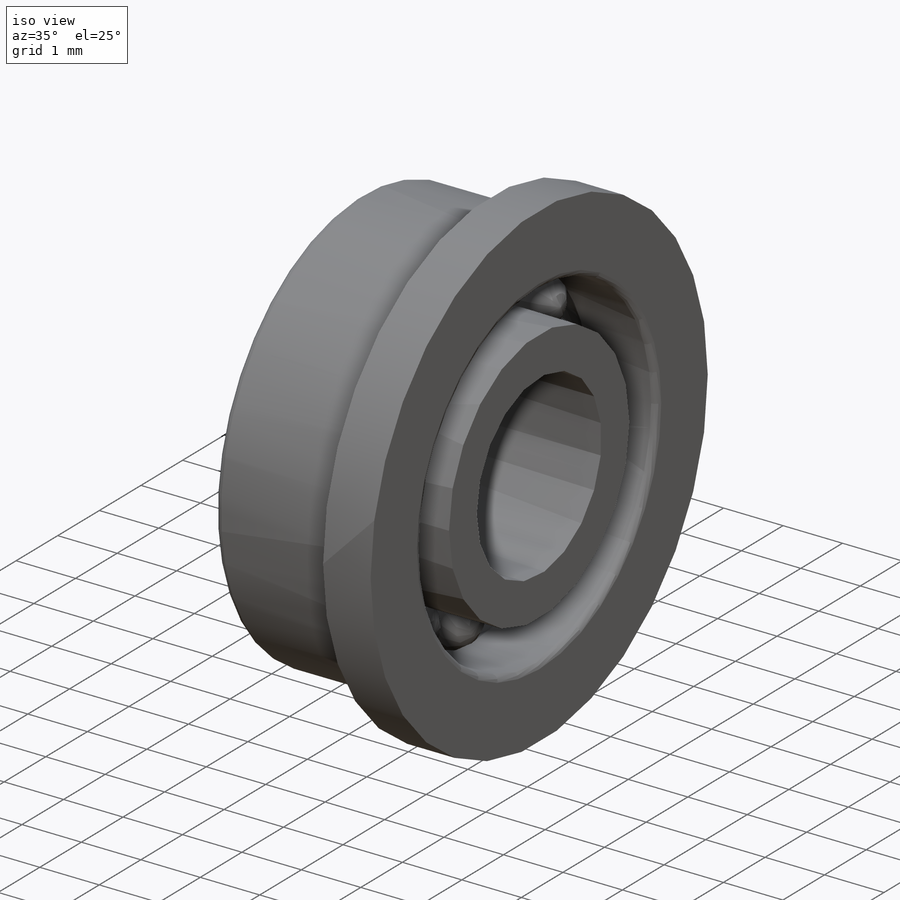
[diagram: iso view]
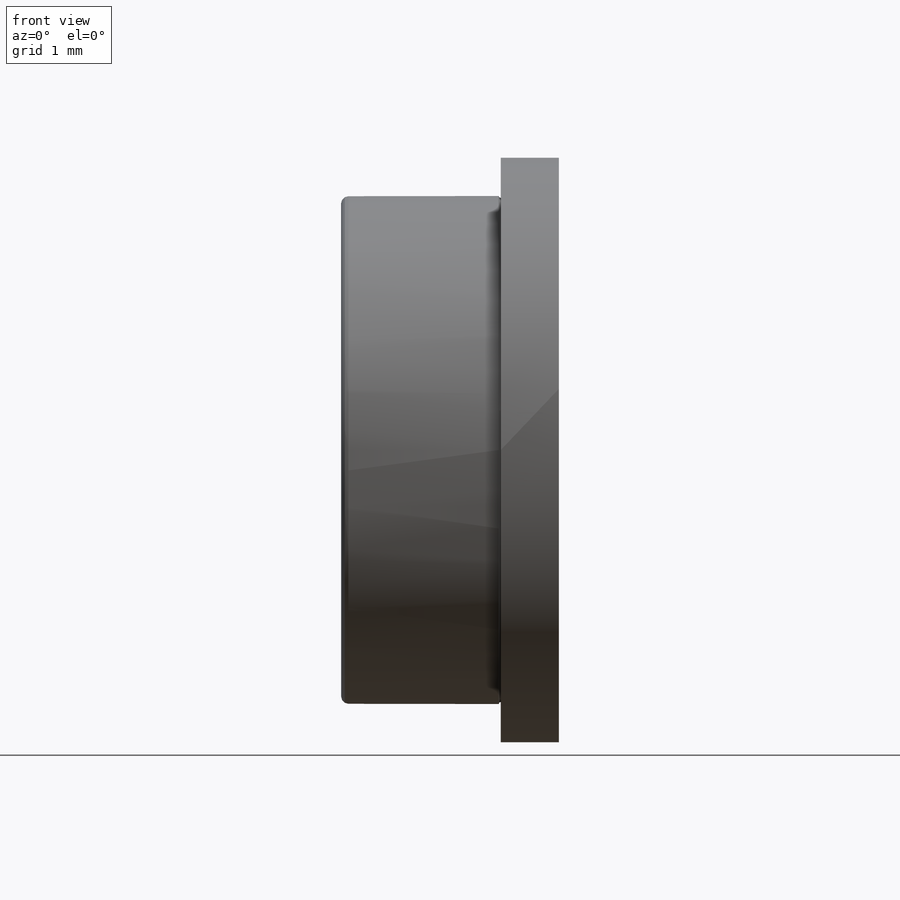
[diagram: front view]
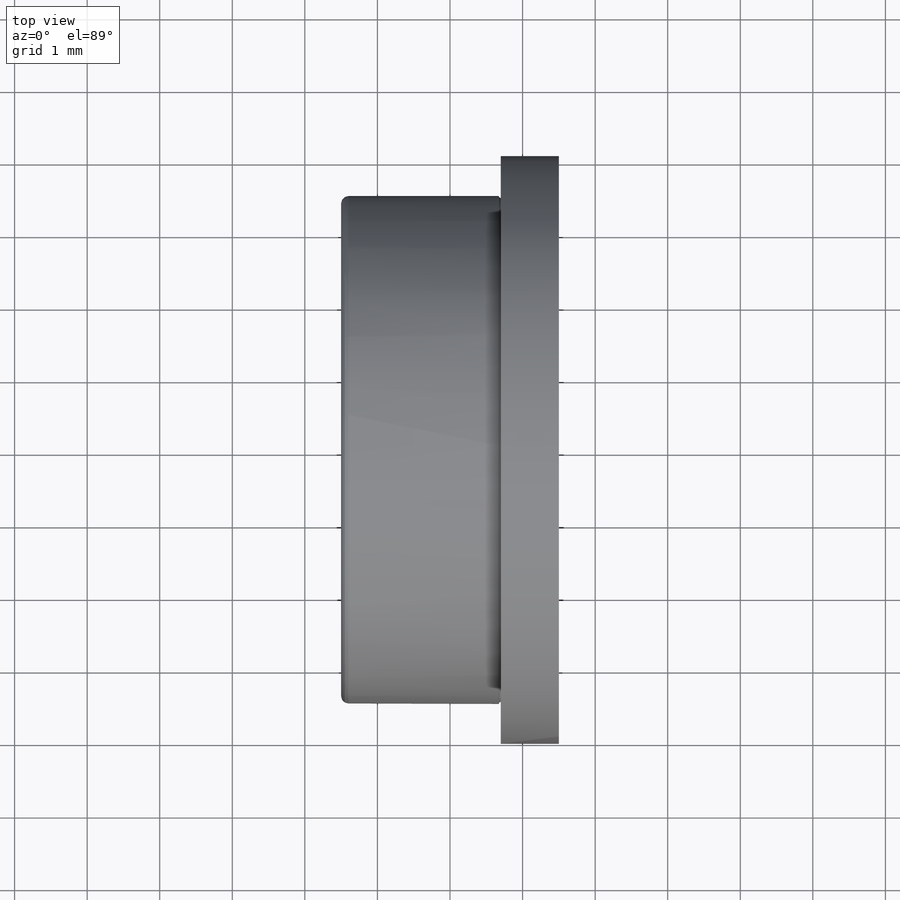
[diagram: top view]
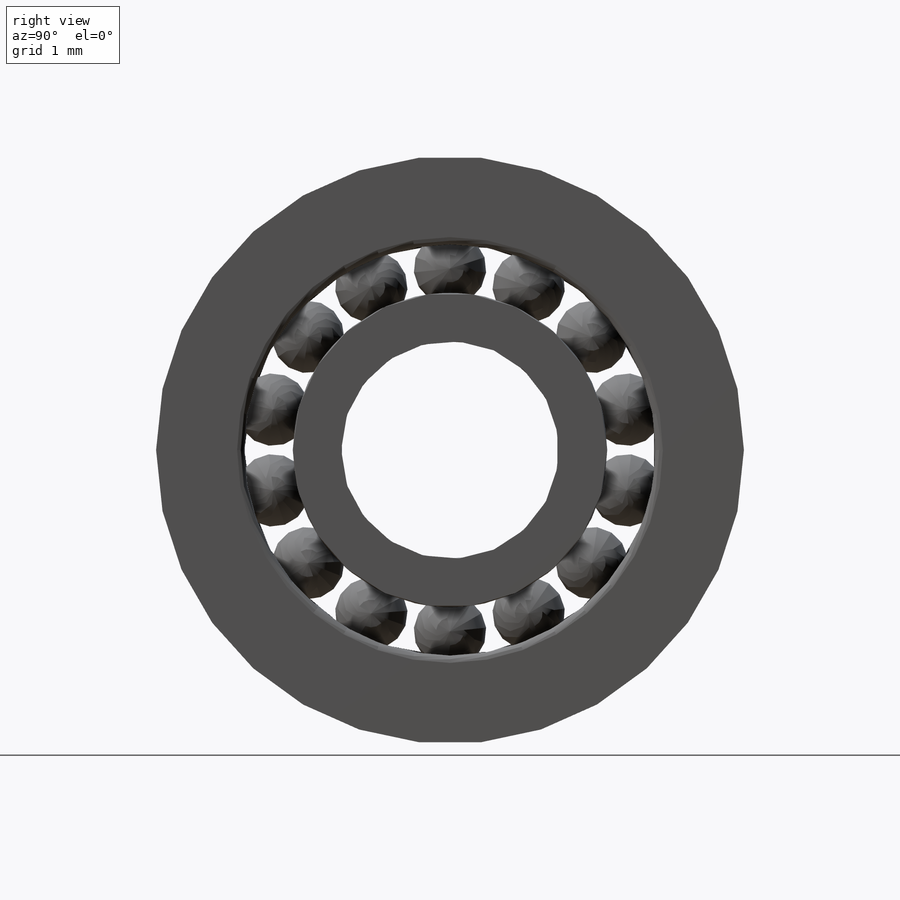
[diagram: right view]
SOLIDWORKS PART (.sldprt)
format: sldprt  version: not decoded by parser v0  size: 396,800 bytes
history: native  units: mm
features: sketch x3, revolve x3, material x1, pattern_circular x1, fillet x1 (+13 scaffold rows collapsed)
feature tree (22):
  scaffold x13  (default folders/planes/origin — collapsed)
  material  "材质 <未指定>"
  sketch  "Sketch1"  dims[D2=1.0mm D1=2.5mm]
  revolve  "Revolve1"  Angle=360deg
  sketch  "Sketch2"  dims[c1.D6=0.98mm c1.D1=3.0mm c1.D2=2.5mm c1.D3=3.0mm c1.D4=0.6mm c1.D5=~4.333333mm c2.D4=1.5mm]
  revolve  "Revolve2"  Angle=360deg
  sketch  "Sketch3"  dims[c1.D8=0.98mm c1.R=2.5mm c1.DD=7.0mm c1.DD1=8.1mm c1.C1=0.8mm c1.B=3.0mm c1.D6=0.6mm c1.D7=~5.666667mm c1.D1=0.6mm c2.D6=1.5mm]
  revolve  "Revolve3"  Angle=360deg
  pattern_circular  "Circular-Pattern1"  Count=14 Angle=360deg m=14
  fillet  "Fillet1"  Radius=0.1mm r=0.1mm CopiedFlag=1
decode coverage: 8 of 8 modeling features carry decoded parameters
note: ~ marks probable driven/reference dimensions
note: suppression state not decoded; provenance and decode notes live in map.json
